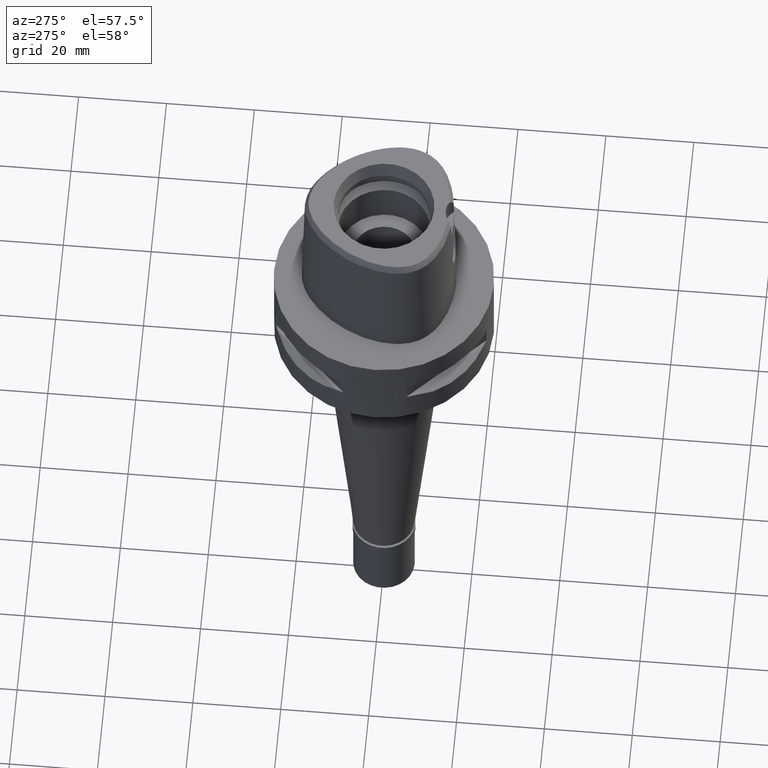
[diagram: clean part render]
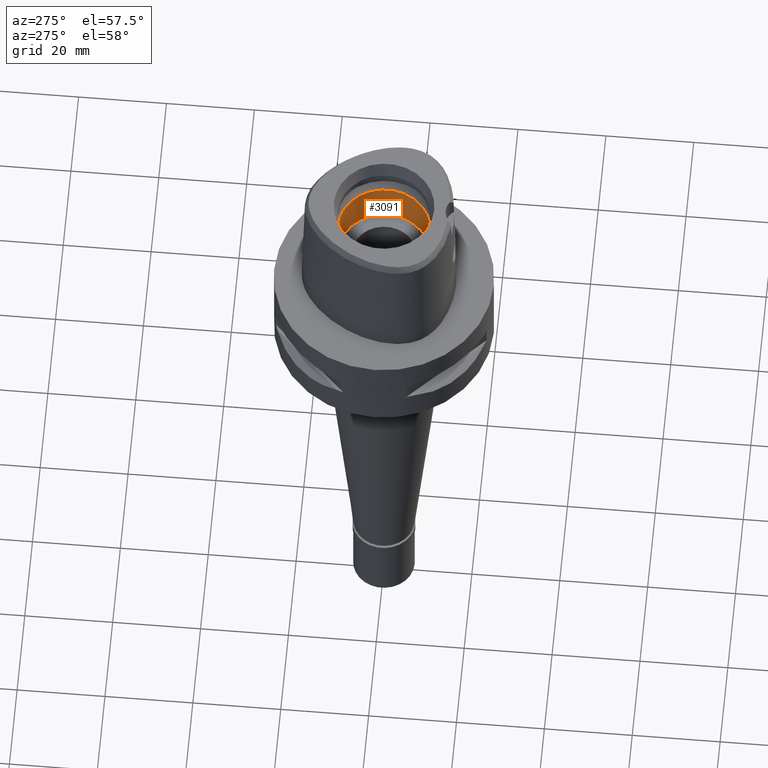
[diagram: same view with one face highlighted and labeled with its STEP entity id]
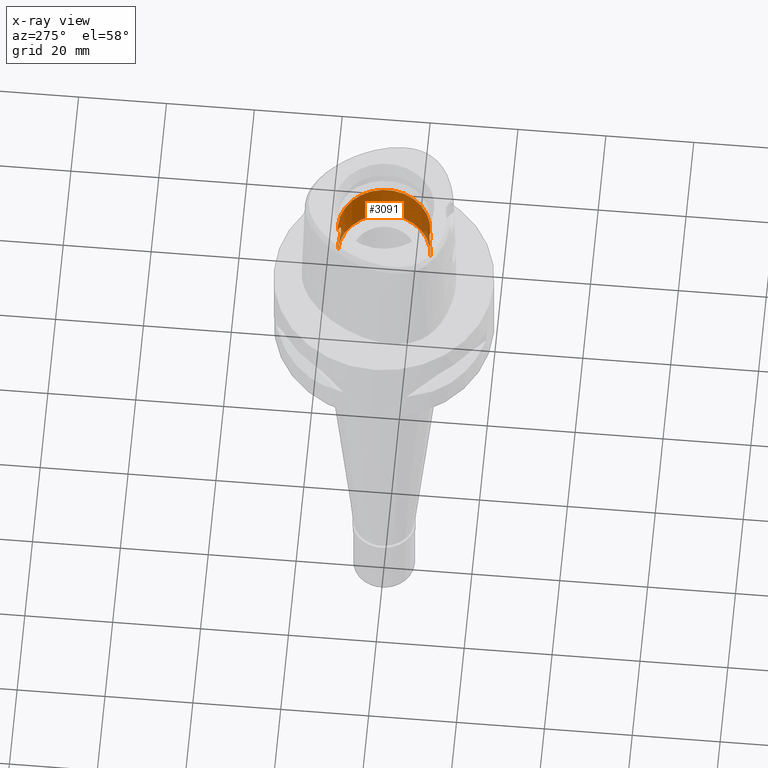
[diagram: x-ray of the same camera — body ghosted, the highlighted face saturated]
A machine part, auxiliary view. The second image highlights one B-rep face of the part: STEP entity #3091.
The next image is the same camera in x-ray: the body ghosted, the highlighted face saturated — about 4% of this face is hidden behind the body in this view.
In plain terms, the highlighted cylindrical surface (partial cylindrical patch) has radius 10.5 mm, axis along (0, 0, -1).
Its self-contained STEP definition (entity closure, byte-faithful):
#12 = CARTESIAN_POINT ( 'NONE',  ( 2.549768802787570010, 10.18570099338988832, 15.67367355964339026 ) ) ;
#27 = CARTESIAN_POINT ( 'NONE',  ( 0.6688774812611679721, -10.47883812602031561, 16.97738131204618384 ) ) ;
#34 = CARTESIAN_POINT ( 'NONE',  ( 1.342293398414086125, 10.41383903482682527, 16.73918355951393622 ) ) ;
#48 = CARTESIAN_POINT ( 'NONE',  ( 2.800979720946436213, -10.11960603068971132, 15.20712345414295541 ) ) ;
#72 = CARTESIAN_POINT ( 'NONE',  ( 2.552427928396863166, -10.18503463177848545, 12.33038235610675137 ) ) ;
#82 = CARTESIAN_POINT ( 'NONE',  ( 0.0000000000000000000, 1.483670516304999789E-14, 20.40089161527999906 ) ) ;
#93 = CARTESIAN_POINT ( 'NONE',  ( 2.136100343734112617, -10.28042929747009815, 16.17712836185316760 ) ) ;
#116 = CARTESIAN_POINT ( 'NONE',  ( 2.658794028149571442, -10.15786896108676451, 12.50467189553370240 ) ) ;
#142 = CARTESIAN_POINT ( 'NONE',  ( 2.422046306151929951, -10.21701399604496885, 15.85438239164646923 ) ) ;
#156 = AXIS2_PLACEMENT_3D ( 'NONE', #2419, #3881, #558 ) ;
#165 = FACE_OUTER_BOUND ( 'NONE', #3454, .T. ) ;
#173 = CARTESIAN_POINT ( 'NONE',  ( 1.386948097363750909, -10.40799934146660455, 11.28311535730615667 ) ) ;
#185 = CARTESIAN_POINT ( 'NONE',  ( 1.811923068219099653, 10.34268283243203790, 11.54447952458163051 ) ) ;
#213 = CARTESIAN_POINT ( 'NONE',  ( 2.136201039484774800, 10.28040836939871383, 11.82297045442675554 ) ) ;
#236 = CARTESIAN_POINT ( 'NONE',  ( 0.0000000000000000000, 10.50000000000000000, 20.40089161527999906 ) ) ;
#243 = CARTESIAN_POINT ( 'NONE',  ( 2.103306347304765289, 10.28717493434397845, 11.79118843241994341 ) ) ;
#248 = DIRECTION ( 'NONE',  ( 0.0000000000000000000, 0.0000000000000000000, -1.000000000000000000 ) ) ;
#250 = DIRECTION ( 'NONE',  ( 0.0000000000000000000, 0.0000000000000000000, -1.000000000000000000 ) ) ;
#315 = CARTESIAN_POINT ( 'NONE',  ( 0.3776824852804930854, 10.50000000000000355, 17.05000000000000071 ) ) ;
#340 = CARTESIAN_POINT ( 'NONE',  ( 2.556057301364237144, 10.18412497569450004, 15.66405603269874547 ) ) ;
#361 = CARTESIAN_POINT ( 'NONE',  ( 3.050000168970783410, 10.04725645812263579, 14.18510065153600053 ) ) ;
#377 = CARTESIAN_POINT ( 'NONE',  ( 1.500968808066890148, -10.39222569595904844, 16.65561435862955619 ) ) ;
#383 = CARTESIAN_POINT ( 'NONE',  ( 2.801053816413660247, 10.11958639361671786, 12.79304847579369309 ) ) ;
#406 = CARTESIAN_POINT ( 'NONE',  ( 2.465945275125391856, 10.20663448907766835, 15.79766872939286593 ) ) ;
#418 = CARTESIAN_POINT ( 'NONE',  ( 1.811842809112848895, -10.34269679768338257, 16.45557948583557462 ) ) ;
#439 = CARTESIAN_POINT ( 'NONE',  ( 2.888899562011218780, -10.09491797827999449, 13.01950824191362699 ) ) ;
#465 = CARTESIAN_POINT ( 'NONE',  ( 2.466005327969370775, -10.20661944846525593, 12.20241368106630375 ) ) ;
#486 = CARTESIAN_POINT ( 'NONE',  ( 2.484594037386860244, -10.20184754279077666, 15.76909523304286687 ) ) ;
#509 = CARTESIAN_POINT ( 'NONE',  ( 2.574354970550871258, -10.17952184411067584, 12.36430098328962046 ) ) ;
#534 = VERTEX_POINT ( 'NONE', #1340 ) ;
#540 = CARTESIAN_POINT ( 'NONE',  ( 0.7784719832900152126, -10.47826499193357641, 11.02113842329111115 ) ) ;
#554 = CARTESIAN_POINT ( 'NONE',  ( 1.641185955448284162, 10.37094866851886721, 11.42913987663042796 ) ) ;
#558 = DIRECTION ( 'NONE',  ( 0.0000000000000000000, -1.000000000000000000, 0.0000000000000000000 ) ) ;
#577 = CARTESIAN_POINT ( 'NONE',  ( 1.141794485349677313, 10.43767506429851011, 11.17176097919053213 ) ) ;
#601 = CARTESIAN_POINT ( 'NONE',  ( 0.3787274524813821763, 10.49470894530655407, 10.96720324273529279 ) ) ;
#625 = VERTEX_POINT ( 'NONE', #4708 ) ;
#632 = CARTESIAN_POINT ( 'NONE',  ( 2.525703912823202391, 10.19168522689460943, 12.29022032174983003 ) ) ;
#644 = ORIENTED_EDGE ( 'NONE', *, *, #1164, .T. ) ;
#655 = CARTESIAN_POINT ( 'NONE',  ( 1.601831701818940967, 10.37712803855642463, 11.40426016688685351 ) ) ;
#681 = CARTESIAN_POINT ( 'NONE',  ( 0.7784327284102964262, 10.47826738559791693, 16.97886791811174234 ) ) ;
#704 = CARTESIAN_POINT ( 'NONE',  ( 2.658740901824827141, 10.15788282424896138, 15.49542257602510986 ) ) ;
#721 = CARTESIAN_POINT ( 'NONE',  ( 1.141732985535315326, -10.43768196579646279, 16.82826384510322626 ) ) ;
#727 = CARTESIAN_POINT ( 'NONE',  ( 2.599143935894969726, 10.17324269225338718, 15.59630357580038051 ) ) ;
#739 = CARTESIAN_POINT ( 'NONE',  ( 1.456436929924989965, -10.39854506465477968, 16.68025671205563398 ) ) ;
#744 = CARTESIAN_POINT ( 'NONE',  ( 2.648850664410045130, 10.16055922834963710, 12.48463899832692192 ) ) ;
#761 = CARTESIAN_POINT ( 'NONE',  ( 1.657978121026951523, -10.36826822009252247, 16.56001047764421941 ) ) ;
#768 = CARTESIAN_POINT ( 'NONE',  ( 2.512921878283643995, 10.19492176240920145, 15.72972677548092157 ) ) ;
#785 = CARTESIAN_POINT ( 'NONE',  ( 3.027607236360491338, -10.05429310237827423, 14.38135529722916139 ) ) ;
#799 = ORIENTED_EDGE ( 'NONE', *, *, #3696, .F. ) ;
#804 = CARTESIAN_POINT ( 'NONE',  ( 2.531016047136658731, -10.19036528538620878, 15.70189936972407274 ) ) ;
#830 = CARTESIAN_POINT ( 'NONE',  ( 2.342968627457624908, -10.23558722573572766, 12.04475145765551147 ) ) ;
#859 = CARTESIAN_POINT ( 'NONE',  ( 2.103211535601106963, -10.28719430385092437, 16.20890183210499913 ) ) ;
#873 = EDGE_CURVE ( 'NONE', #2217, #3688, #2713, .T. ) ;
#882 = CARTESIAN_POINT ( 'NONE',  ( 1.930388096063102799, -10.32098858174314415, 16.36191406334469889 ) ) ;
#905 = CARTESIAN_POINT ( 'NONE',  ( 1.781763810728749897, -10.34769672004815533, 11.52446512619911090 ) ) ;
#922 = CARTESIAN_POINT ( 'NONE',  ( 0.9113412802436261506, 10.46031708979915820, 11.08889911175401188 ) ) ;
#958 = CARTESIAN_POINT ( 'NONE',  ( 1.971998943791629877, 10.31315283189274190, 11.67255075534903064 ) ) ;
#971 = CARTESIAN_POINT ( 'NONE',  ( 1.210594587562798585, -10.42986900100492065, 11.20051790911941758 ) ) ;
#979 = DIRECTION ( 'NONE',  ( 0.0000000000000000000, 0.0000000000000000000, -1.000000000000000000 ) ) ;
#1007 = CARTESIAN_POINT ( 'NONE',  ( 2.501007571785318184, 10.19780901880324642, 12.25415054793910130 ) ) ;
#1062 = CARTESIAN_POINT ( 'NONE',  ( 1.210530326312074134, 10.42987676989072732, 16.79950987504991033 ) ) ;
#1078 = CARTESIAN_POINT ( 'NONE',  ( 0.0000000000000000000, 1.610410540878999754E-14, 10.00000000000000000 ) ) ;
#1084 = CARTESIAN_POINT ( 'NONE',  ( 3.033106798430447615, 10.05272106261936926, 14.37597179215571508 ) ) ;
#1102 = CARTESIAN_POINT ( 'NONE',  ( 1.068247455599155682, -10.44548337543123928, 16.85701016503113792 ) ) ;
#1112 = CARTESIAN_POINT ( 'NONE',  ( 2.619440559707270744, 10.16803796971161056, 15.56259531553788023 ) ) ;
#1118 = CARTESIAN_POINT ( 'NONE',  ( 0.0000000000000000000, 10.50000000000000000, 20.40089161527999906 ) ) ;
#1131 = CARTESIAN_POINT ( 'NONE',  ( 2.741748741093550379, 10.13583772775570324, 12.66297536229606280 ) ) ;
#1145 = CARTESIAN_POINT ( 'NONE',  ( 1.568097863131003189, -10.38225193758933784, 16.61615038516162102 ) ) ;
#1146 = DIRECTION ( 'NONE',  ( 0.0000000000000000000, 1.000000000000000000, 0.0000000000000000000 ) ) ;
#1151 = CARTESIAN_POINT ( 'NONE',  ( 2.751833750798593492, 10.13317589947681796, 15.31899371389366848 ) ) ;
#1164 = EDGE_CURVE ( 'NONE', #3254, #534, #1823, .T. ) ;
#1171 = CARTESIAN_POINT ( 'NONE',  ( 2.772319110776069184, -10.12750285136528561, 15.27174168419082534 ) ) ;
#1194 = CARTESIAN_POINT ( 'NONE',  ( 2.787064406588477983, -10.12345627881758148, 15.23924730534490024 ) ) ;
#1213 = CARTESIAN_POINT ( 'NONE',  ( 2.791214425727966741, -10.12233497789926773, 12.76723173827698155 ) ) ;
#1240 = CARTESIAN_POINT ( 'NONE',  ( 1.989381541700123712, -10.31000550252612946, 11.68587608860982208 ) ) ;
#1247 = CARTESIAN_POINT ( 'NONE',  ( 0.0000000000000000000, -10.50000000000000000, 10.00000000000000000 ) ) ;
#1266 = CARTESIAN_POINT ( 'NONE',  ( 2.741672579531738485, -10.13585776235383484, 15.33718066085879173 ) ) ;
#1288 = CARTESIAN_POINT ( 'NONE',  ( 1.179453071966998223, -10.43343653779657565, 11.18724984501825048 ) ) ;
#1307 = CARTESIAN_POINT ( 'NONE',  ( 1.188897683297293284, -10.43236352860217053, 11.19123487431793151 ) ) ;
#1316 = CARTESIAN_POINT ( 'NONE',  ( 0.0000000000000000000, -10.50000000000000000, 17.05000000000000071 ) ) ;
#1332 = CARTESIAN_POINT ( 'NONE',  ( 1.342365910254549100, -10.41382946864366232, 11.26085191158715482 ) ) ;
#1340 = CARTESIAN_POINT ( 'NONE',  ( 0.0000000000000000000, 10.50000000000000000, 10.00000000000000000 ) ) ;
#1370 = CARTESIAN_POINT ( 'NONE',  ( 0.9839371454462720878, 10.45386861689152624, 11.11227514083250867 ) ) ;
#1394 = CARTESIAN_POINT ( 'NONE',  ( 1.501050544116798946, 10.39221389090072911, 11.34443176979017487 ) ) ;
#1441 = CARTESIAN_POINT ( 'NONE',  ( 2.810150186842709896, 10.11706320198503128, 12.81438185252698680 ) ) ;
#1455 = CARTESIAN_POINT ( 'NONE',  ( 0.9838845370238309407, -10.45387372780990809, 16.88774268329863304 ) ) ;
#1463 = CARTESIAN_POINT ( 'NONE',  ( 2.574295021999103206, 10.17953738072038128, 15.63579337298669536 ) ) ;
#1476 = CARTESIAN_POINT ( 'NONE',  ( 1.323896765677277765, -10.41651376008978325, 16.74949734448019356 ) ) ;
#1485 = CARTESIAN_POINT ( 'NONE',  ( 1.729811899855771884, 10.35653978206846304, 16.51205017565036215 ) ) ;
#1507 = CARTESIAN_POINT ( 'NONE',  ( 2.342902607903007972, 10.23560269219891516, 15.95532767853151768 ) ) ;
#1528 = CARTESIAN_POINT ( 'NONE',  ( 1.276100751046590487, 10.42207867787087139, 16.77031792547582612 ) ) ;
#1549 = CARTESIAN_POINT ( 'NONE',  ( 2.719700136812867708, -10.14177672420369447, 15.38140804886839419 ) ) ;
#1572 = CARTESIAN_POINT ( 'NONE',  ( 2.549831744840582726, -10.18568479865094112, 12.32642233344095573 ) ) ;
#1589 = CARTESIAN_POINT ( 'NONE',  ( 2.844275244107489442, -10.10750057597628526, 12.89874350943842174 ) ) ;
#1616 = CARTESIAN_POINT ( 'NONE',  ( 1.833449799978573935, -10.33866271675340975, 11.56221769112445052 ) ) ;
#1666 = CARTESIAN_POINT ( 'NONE',  ( 1.716860572636586868, -10.35869652779481065, 11.47910248954204704 ) ) ;
#1677 = CARTESIAN_POINT ( 'NONE',  ( 1.237025000621027937, 10.42716557871980498, 11.21062230837929263 ) ) ;
#1705 = CARTESIAN_POINT ( 'NONE',  ( 0.0000000000000000000, -10.50000000000000000, 20.40089161527999906 ) ) ;
#1733 = DIRECTION ( 'NONE',  ( 0.0000000000000000000, 0.0000000000000000000, -1.000000000000000000 ) ) ;
#1739 = CARTESIAN_POINT ( 'NONE',  ( 1.104370182683264812, 10.44169505746011595, 11.15693245560120950 ) ) ;
#1793 = B_SPLINE_CURVE_WITH_KNOTS ( 'NONE', 3,
 ( #4667, #3242, #601, #2798, #4687, #922, #1370, #2414, #1739, #4610, #577, #1677, #3877, #4284, #1394, #2871, #655, #554, #2466, #2051, #4304, #3518, #185, #3159, #958, #3904, #3927, #243, #2075, #213, #3194, #2101, #3571, #3221, #2848, #1007, #3950, #632, #4374, #2920, #2537, #2241, #744, #1857, #1131, #4738, #4783, #383, #1441, #2970, #3682, #4084, #3358, #1881, #361, #1084, #4398, #2586, #3664, #4045, #3293, #3313, #2560, #4023, #2946, #1151, #3704, #704, #1112, #727, #1463, #2629, #340, #2197, #12, #768, #406, #1507, #4760, #3726, #2988, #2218, #1836, #3337, #2610, #1485, #4420, #3643, #2265, #4062, #4442, #1900, #3373, #34, #1528, #4354, #1062, #3999, #2173, #681, #315, #1816 ),
 .UNSPECIFIED., .F., .F.,
 ( 4, 2, 2, 1, 1, 2, 2, 2, 2, 1, 1, 2, 2, 2, 2, 1, 2, 2, 2, 2, 1, 1, 1, 2, 2, 2, 2, 1, 2, 2, 2, 2, 2, 2, 1, 1, 2, 2, 2, 2, 1, 1, 1, 2, 2, 2, 2, 2, 2, 1, 1, 1, 2, 2, 2, 2, 1, 2, 2, 4 ),
 ( 0.0000000000000000000, 0.06250000000001879052, 0.09375000000002815803, 0.1093750000000328210, 0.1171875000000351247, 0.1210937500000363876, 0.1250000000000376643, 0.1562500000000484335, 0.1718750000000537903, 0.1796875000000564548, 0.1835937500000577594, 0.1855468750000582590, 0.1875000000000587586, 0.2187500000000685285, 0.2343750000000733302, 0.2421875000000758282, 0.2460937500000770772, 0.2500000000000782707, 0.2812500000000884848, 0.2968750000000937583, 0.3046875000000962563, 0.3085937500000974776, 0.3105468750000977551, 0.3115234375000978662, 0.3125000000000980327, 0.3437500000000984768, 0.3593750000000989209, 0.3671875000000989764, 0.3710937500000989209, 0.3750000000000988654, 0.4375000000001045275, 0.5000000000001102451, 0.5625000000001159073, 0.5937500000001185718, 0.6093750000001201261, 0.6171875000001209033, 0.6210937500001211253, 0.6250000000001212364, 0.6562500000001231237, 0.6718750000001240119, 0.6796875000001247891, 0.6835937500001252332, 0.6855468750001258993, 0.6865234375001257883, 0.6875000000001256772, 0.7187500000001195710, 0.7500000000001135758, 0.7812500000001075806, 0.7968750000001044720, 0.8046875000001033618, 0.8085937500001029177, 0.8105468750001025846, 0.8115234375001021405, 0.8125000000001015854, 0.8437500000000834888, 0.8593750000000743849, 0.8671875000000698330, 0.8710937500000678346, 0.8750000000000657252, 1.000000000000000000 ),
 .UNSPECIFIED. ) ;
#1816 = CARTESIAN_POINT ( 'NONE',  ( 0.0000000000000000000, 10.50000000000000000, 17.05000000000000071 ) ) ;
#1823 = LINE ( 'NONE', #3959, #3483 ) ;
#1836 = CARTESIAN_POINT ( 'NONE',  ( 1.833369269573338123, 10.33867676254427437, 16.43784289496951700 ) ) ;
#1857 = CARTESIAN_POINT ( 'NONE',  ( 2.719777489731567410, 10.14175641246916015, 12.61874419158370664 ) ) ;
#1881 = CARTESIAN_POINT ( 'NONE',  ( 3.049999831026676933, 10.04726935032736890, 13.81489378006643243 ) ) ;
#1900 = CARTESIAN_POINT ( 'NONE',  ( 1.521598319329239724, 10.38951171458037770, 16.64529504379291680 ) ) ;
#1915 = CARTESIAN_POINT ( 'NONE',  ( 2.648768239977827399, -10.16058067332577330, 15.51550484575867550 ) ) ;
#1939 = CARTESIAN_POINT ( 'NONE',  ( 2.561634872386847395, -10.18272450818466446, 12.34452234617988609 ) ) ;
#1966 = CARTESIAN_POINT ( 'NONE',  ( 2.266144854621401361, -10.25299388352025787, 11.95426803284425610 ) ) ;
#1986 = CARTESIAN_POINT ( 'NONE',  ( 2.912211511062697156, -10.08825325305797627, 13.09221294453771911 ) ) ;
#2010 = CARTESIAN_POINT ( 'NONE',  ( 1.740926287971506836, -10.35483511188262185, 16.50537809591427063 ) ) ;
#2039 = CARTESIAN_POINT ( 'NONE',  ( 1.276169219736535076, -10.42207001621971330, 11.22971359884679643 ) ) ;
#2051 = CARTESIAN_POINT ( 'NONE',  ( 1.669325064467333863, 10.36644722215274506, 11.44737411065894861 ) ) ;
#2075 = CARTESIAN_POINT ( 'NONE',  ( 2.125917809817211790, 10.28253520498369511, 11.81294270820584735 ) ) ;
#2101 = CARTESIAN_POINT ( 'NONE',  ( 2.328196717487270195, 10.23898725311201119, 12.02714150817950589 ) ) ;
#2107 = VERTEX_POINT ( 'NONE', #1247 ) ;
#2155 = CARTESIAN_POINT ( 'NONE',  ( 0.0000000000000000000, -10.50000000000000000, 10.94999999999999929 ) ) ;
#2166 = CARTESIAN_POINT ( 'NONE',  ( 1.676718924548066481, -10.36525237659834708, 16.54777042361276784 ) ) ;
#2173 = CARTESIAN_POINT ( 'NONE',  ( 1.179391020530852652, 10.43344386839362059, 16.81277616976975153 ) ) ;
#2197 = CARTESIAN_POINT ( 'NONE',  ( 2.552365511454779412, 10.18505070644791388, 15.66971306030548483 ) ) ;
#2213 = CARTESIAN_POINT ( 'NONE',  ( 1.236957856289733648, -10.42717367617683877, 16.78940726311529374 ) ) ;
#2217 = VERTEX_POINT ( 'NONE', #1316 ) ;
#2218 = CARTESIAN_POINT ( 'NONE',  ( 1.870575969054834475, 10.33200182690538682, 16.40956895859907760 ) ) ;
#2223 = DIRECTION ( 'NONE',  ( 0.0000000000000000000, -1.000000000000000000, 0.0000000000000000000 ) ) ;
#2241 = CARTESIAN_POINT ( 'NONE',  ( 2.594875644332431008, 10.17449012125675267, 12.39333396167546297 ) ) ;
#2255 = CARTESIAN_POINT ( 'NONE',  ( 1.669234959747533331, -10.36646163797745679, 16.55268481105852629 ) ) ;
#2265 = CARTESIAN_POINT ( 'NONE',  ( 1.707656667431065589, 10.36021860589374732, 16.52713543650936856 ) ) ;
#2280 = CARTESIAN_POINT ( 'NONE',  ( 3.049997457825905034, -10.04726768335126152, 14.09262106841230988 ) ) ;
#2301 = CARTESIAN_POINT ( 'NONE',  ( 2.619496371660233969, -10.16802340642455604, 12.43749825123569508 ) ) ;
#2308 = EDGE_CURVE ( 'NONE', #3966, #2217, #3542, .T. ) ;
#2325 = CARTESIAN_POINT ( 'NONE',  ( 2.954919872153779714, -10.07594969640612881, 13.23766054668898917 ) ) ;
#2354 = CARTESIAN_POINT ( 'NONE',  ( 2.531198843314137026, -10.19031986401626710, 15.70162992011681347 ) ) ;
#2376 = CARTESIAN_POINT ( 'NONE',  ( 2.829361163358425024, -10.11167872823986613, 12.86099082516203751 ) ) ;
#2398 = CARTESIAN_POINT ( 'NONE',  ( 1.707003811296404328, -10.36032678721340439, 11.47242214210652378 ) ) ;
#2414 = CARTESIAN_POINT ( 'NONE',  ( 1.068304840380863485, 10.44547733483863894, 11.14301126591829316 ) ) ;
#2419 = CARTESIAN_POINT ( 'NONE',  ( 0.0000000000000000000, 1.610410540878999754E-14, 31.50000000000000000 ) ) ;
#2466 = CARTESIAN_POINT ( 'NONE',  ( 1.658067691841937918, 10.36825398497860462, 11.44004753343680214 ) ) ;
#2537 = CARTESIAN_POINT ( 'NONE',  ( 2.531295471044666012, 10.19029565195985398, 12.29851382421077943 ) ) ;
#2542 = LINE ( 'NONE', #2155, #4171 ) ;
#2560 = CARTESIAN_POINT ( 'NONE',  ( 2.834772115109752910, 10.11016348655465080, 15.12549303329494776 ) ) ;
#2578 = CARTESIAN_POINT ( 'NONE',  ( 1.104310761165587129, -10.44170151709308136, 16.84309062177460348 ) ) ;
#2586 = CARTESIAN_POINT ( 'NONE',  ( 2.954882638284636709, 10.07596013546080904, 14.76248388676967416 ) ) ;
#2610 = CARTESIAN_POINT ( 'NONE',  ( 1.756864159878566367, 10.35198327953328956, 16.49330503809262538 ) ) ;
#2622 = CARTESIAN_POINT ( 'NONE',  ( 1.601744847466686217, -10.37714138207295811, 16.59579339570974810 ) ) ;
#2629 = CARTESIAN_POINT ( 'NONE',  ( 2.561573521328561753, 10.18274035299596036, 15.65557258541091734 ) ) ;
#2644 = CARTESIAN_POINT ( 'NONE',  ( 3.013860203605535748, -10.05850444702513258, 14.47860310561554975 ) ) ;
#2659 = CARTESIAN_POINT ( 'NONE',  ( 2.683269133176498844, -10.15143825073914741, 12.54912944303389821 ) ) ;
#2678 = CARTESIAN_POINT ( 'NONE',  ( 2.594787844664584675, -10.17451272417047825, 15.60680824590878757 ) ) ;
#2706 = CARTESIAN_POINT ( 'NONE',  ( 1.870655397227993788, -10.33198768520815669, 11.59049268858693438 ) ) ;
#2713 = B_SPLINE_CURVE_WITH_KNOTS ( 'NONE', 3,
 ( #4415, #3351, #3637, #27, #4057, #4777, #1455, #1102, #2578, #4039, #721, #2213, #1476, #739, #377, #1145, #2622, #4077, #761, #2255, #2166, #2010, #418, #882, #3095, #4117, #3003, #859, #3479, #93, #4501, #4458, #142, #3067, #486, #4521, #3386, #4166, #4548, #804, #2354, #2678, #1915, #1549, #1266, #1171, #1194, #48, #4099, #2737, #3044, #3816, #2644, #785, #4193, #2280, #3024, #4484, #3739, #2325, #1986, #439, #3789, #1589, #3455, #2376, #1213, #3835, #2659, #116, #2301, #3761, #509, #1939, #3407, #72, #1572, #4139, #465, #830, #1966, #3431, #1240, #2706, #1616, #905, #3123, #3863, #1666, #4623, #3534, #2398, #3146, #4595, #173, #1332, #2039, #2811, #971, #1307, #1288, #540, #2783, #4239 ),
 .UNSPECIFIED., .F., .F.,
 ( 4, 2, 2, 1, 1, 2, 2, 2, 2, 1, 1, 2, 2, 2, 2, 1, 2, 2, 2, 2, 1, 1, 1, 2, 2, 2, 2, 1, 2, 2, 2, 2, 2, 2, 2, 1, 1, 2, 2, 2, 2, 1, 1, 1, 2, 2, 2, 2, 2, 2, 1, 1, 1, 2, 2, 2, 2, 1, 2, 2, 4 ),
 ( 0.0000000000000000000, 0.06249999999992951472, 0.09374999999989434840, 0.1093749999998765987, 0.1171874999998677308, 0.1210937499998632622, 0.1249999999998588074, 0.1562499999998203382, 0.1718749999998008260, 0.1796874999997910560, 0.1835937499997860878, 0.1855468749997836175, 0.1874999999997811473, 0.2187499999997441213, 0.2343749999997252753, 0.2421874999997158384, 0.2460937499997114253, 0.2499999999997069844, 0.2812499999996705968, 0.2968749999996523337, 0.3046874999996431743, 0.3085937499996391775, 0.3105468749996372901, 0.3115234374996369571, 0.3124999999996366240, 0.3437499999996477262, 0.3593749999996534994, 0.3671874999996566080, 0.3710937499996579403, 0.3749999999996592170, 0.4374999999996792566, 0.4687499999996892486, 0.4999999999996992406, 0.5624999999997192246, 0.5937499999997293276, 0.6093749999997343236, 0.6171874999997368771, 0.6210937499997380984, 0.6249999999997393196, 0.6562499999997486455, 0.6718749999997531974, 0.6796874999997555289, 0.6835937499997566391, 0.6855468749997573052, 0.6865234374997576383, 0.6874999999997579714, 0.7187499999997785105, 0.7499999999997989386, 0.7812499999998194777, 0.7968749999998296918, 0.8046874999998347988, 0.8085937499998374633, 0.8105468749998386846, 0.8115234374998394618, 0.8124999999998401279, 0.8437499999998666622, 0.8593749999998798739, 0.8671874999998865352, 0.8710937499998897549, 0.8749999999998930855, 1.000000000000000000 ),
 .UNSPECIFIED. ) ;
#2737 = CARTESIAN_POINT ( 'NONE',  ( 2.813871346667223605, -10.11602783675715500, 15.17677601548344590 ) ) ;
#2757 = EDGE_CURVE ( 'NONE', #3688, #2107, #2542, .T. ) ;
#2764 = VERTEX_POINT ( 'NONE', #1118 ) ;
#2772 = CYLINDRICAL_SURFACE ( 'NONE', #156, 10.50000000000000000 ) ;
#2783 = CARTESIAN_POINT ( 'NONE',  ( 0.3776990394879757851, -10.49999999999999822, 10.94999999999999751 ) ) ;
#2798 = CARTESIAN_POINT ( 'NONE',  ( 0.6689123132078689249, 10.47883578122621451, 11.02262632832667499 ) ) ;
#2811 = CARTESIAN_POINT ( 'NONE',  ( 1.243239666746700278, -10.42606412921035286, 11.21470856859099108 ) ) ;
#2848 = CARTESIAN_POINT ( 'NONE',  ( 2.484679344343491358, 10.20182652914216170, 12.23102453892253116 ) ) ;
#2868 = ORIENTED_EDGE ( 'NONE', *, *, #4260, .T. ) ;
#2871 = CARTESIAN_POINT ( 'NONE',  ( 1.568183029890100944, 10.38223911306336333, 11.38390064693865789 ) ) ;
#2920 = CARTESIAN_POINT ( 'NONE',  ( 2.531111734320958817, 10.19034130873208532, 12.29824294131188545 ) ) ;
#2946 = CARTESIAN_POINT ( 'NONE',  ( 2.791161911908845550, 10.12234823481605162, 15.23288588802282817 ) ) ;
#2970 = CARTESIAN_POINT ( 'NONE',  ( 2.813945975878913153, 10.11600799454591559, 12.82340245404689050 ) ) ;
#2988 = CARTESIAN_POINT ( 'NONE',  ( 1.989303514585730737, 10.31002034776191856, 16.31419092035543272 ) ) ;
#2991 = EDGE_CURVE ( 'NONE', #3966, #2764, #3655, .T. ) ;
#2993 = DIRECTION ( 'NONE',  ( 0.0000000000000000000, 0.0000000000000000000, 1.000000000000000000 ) ) ;
#3003 = CARTESIAN_POINT ( 'NONE',  ( 2.069523711590793624, -10.29404353534653893, 16.24080587214390192 ) ) ;
#3024 = CARTESIAN_POINT ( 'NONE',  ( 3.050005080898542165, -10.04725334564248307, 13.81500911718046076 ) ) ;
#3044 = CARTESIAN_POINT ( 'NONE',  ( 2.899433381332750859, -10.09218068781909317, 14.96967267542248159 ) ) ;
#3067 = CARTESIAN_POINT ( 'NONE',  ( 2.449231481420490297, -10.21047344920699906, 15.81807234377296112 ) ) ;
#3091 = ADVANCED_FACE ( 'NONE', ( #165 ), #2772, .F. ) ;
#3095 = CARTESIAN_POINT ( 'NONE',  ( 1.971913834745691041, -10.31316905232283787, 16.32752121028857673 ) ) ;
#3100 = CARTESIAN_POINT ( 'NONE',  ( 0.0000000000000000000, -10.50000000000000000, 20.40089161527999906 ) ) ;
#3123 = CARTESIAN_POINT ( 'NONE',  ( 1.756949084913084214, -10.35196908568974550, 11.50675482054573884 ) ) ;
#3146 = CARTESIAN_POINT ( 'NONE',  ( 1.612833193455769809, -10.37582084644413172, 11.40897843857475102 ) ) ;
#3159 = CARTESIAN_POINT ( 'NONE',  ( 1.930471181807694503, 10.32097309170120170, 11.63815379018958218 ) ) ;
#3194 = CARTESIAN_POINT ( 'NONE',  ( 2.249117324493820735, 10.25680736615528588, 11.93506107646698311 ) ) ;
#3221 = CARTESIAN_POINT ( 'NONE',  ( 2.449312465963388252, 10.21045377916495234, 12.18203659319498477 ) ) ;
#3242 = CARTESIAN_POINT ( 'NONE',  ( 0.1867762932004476961, 10.50000000000000711, 10.94999999999999929 ) ) ;
#3254 = VERTEX_POINT ( 'NONE', #4334 ) ;
#3293 = CARTESIAN_POINT ( 'NONE',  ( 2.858142235063099168, 10.10360451450099895, 15.06521770040404640 ) ) ;
#3313 = CARTESIAN_POINT ( 'NONE',  ( 2.844221904568916770, 10.10751425218350441, 15.10139423921211410 ) ) ;
#3337 = CARTESIAN_POINT ( 'NONE',  ( 1.781680532372264425, 10.34771082988919133, 16.47559481647503077 ) ) ;
#3351 = CARTESIAN_POINT ( 'NONE',  ( 0.1867674398480352604, -10.49999999999999467, 17.04999999999999005 ) ) ;
#3358 = CARTESIAN_POINT ( 'NONE',  ( 3.032693110682604498, 10.05288456797676133, 13.61931366745536032 ) ) ;
#3373 = CARTESIAN_POINT ( 'NONE',  ( 1.386873018863575613, 10.40800951963617571, 16.71692290248977386 ) ) ;
#3386 = CARTESIAN_POINT ( 'NONE',  ( 2.517739876222782058, -10.19366303897557202, 15.72151130424244414 ) ) ;
#3407 = CARTESIAN_POINT ( 'NONE',  ( 2.556119287377531357, -10.18410899365403388, 12.33603918460904758 ) ) ;
#3431 = CARTESIAN_POINT ( 'NONE',  ( 2.078135821199520006, -10.29274126334308193, 11.76353330178664436 ) ) ;
#3454 = EDGE_LOOP ( 'NONE', ( #644, #2868, #4112, #3663, #4766, #4486, #3517, #799 ) ) ;
#3455 = CARTESIAN_POINT ( 'NONE',  ( 2.834826346757756799, -10.11014960679703911, 12.87464356492052531 ) ) ;
#3479 = CARTESIAN_POINT ( 'NONE',  ( 2.125820991384376413, -10.28255521734048017, 16.18715138478157201 ) ) ;
#3483 = VECTOR ( 'NONE', #250, 1000.000000000000000 ) ;
#3517 = ORIENTED_EDGE ( 'NONE', *, *, #4147, .T. ) ;
#3518 = CARTESIAN_POINT ( 'NONE',  ( 1.741009038481570181, 10.35482127465988000, 11.49467963125762715 ) ) ;
#3534 = CARTESIAN_POINT ( 'NONE',  ( 1.707746356238994512, -10.36020401293069249, 11.47292517123250022 ) ) ;
#3542 = LINE ( 'NONE', #1705, #4333 ) ;
#3571 = CARTESIAN_POINT ( 'NONE',  ( 2.422125717785657883, 10.21699491830676543, 12.14572125793936053 ) ) ;
#3637 = CARTESIAN_POINT ( 'NONE',  ( 0.3787085517134362589, -10.49470953150507491, 17.03279839123862516 ) ) ;
#3639 = DIRECTION ( 'NONE',  ( 0.0000000000000000000, 0.0000000000000000000, -1.000000000000000000 ) ) ;
#3643 = CARTESIAN_POINT ( 'NONE',  ( 1.711288638924743255, 10.35961863196605925, 16.52467740564418719 ) ) ;
#3655 = CIRCLE ( 'NONE', #4102, 10.50000000000000000 ) ;
#3663 = ORIENTED_EDGE ( 'NONE', *, *, #873, .F. ) ;
#3664 = CARTESIAN_POINT ( 'NONE',  ( 2.912166724520529382, 10.08826516473200563, 14.90793074598242995 ) ) ;
#3682 = CARTESIAN_POINT ( 'NONE',  ( 2.899493436784370992, 10.09216444762106768, 13.03050769528759822 ) ) ;
#3688 = VERTEX_POINT ( 'NONE', #4328 ) ;
#3696 = EDGE_CURVE ( 'NONE', #3254, #625, #1793, .T. ) ;
#3704 = CARTESIAN_POINT ( 'NONE',  ( 2.683217005999413374, 10.15145179343504012, 15.45096686765993077 ) ) ;
#3726 = CARTESIAN_POINT ( 'NONE',  ( 2.078056133906709402, 10.29275713203050202, 16.23654017637923275 ) ) ;
#3739 = CARTESIAN_POINT ( 'NONE',  ( 2.978168158509828967, -10.06911518369448721, 13.33467206363919111 ) ) ;
#3761 = CARTESIAN_POINT ( 'NONE',  ( 2.599201387564405330, -10.17322772404753906, 12.40379000138812771 ) ) ;
#3789 = CARTESIAN_POINT ( 'NONE',  ( 2.858194183440916802, -10.10359114810717074, 12.93492166893522999 ) ) ;
#3816 = CARTESIAN_POINT ( 'NONE',  ( 2.957410717728170990, -10.07534498681893709, 14.77193191733126199 ) ) ;
#3835 = CARTESIAN_POINT ( 'NONE',  ( 2.751884679008838042, -10.13316287932903847, 12.68111214655986352 ) ) ;
#3863 = CARTESIAN_POINT ( 'NONE',  ( 1.729899245027333832, -10.35652539926146964, 11.48800997733543561 ) ) ;
#3877 = CARTESIAN_POINT ( 'NONE',  ( 1.323968914910981010, 10.41650450081951540, 11.25053714606462307 ) ) ;
#3881 = DIRECTION ( 'NONE',  ( 0.0000000000000000000, 0.0000000000000000000, -1.000000000000000000 ) ) ;
#3904 = CARTESIAN_POINT ( 'NONE',  ( 2.036679914412427017, 10.30054692283279216, 11.72948026183113690 ) ) ;
#3927 = CARTESIAN_POINT ( 'NONE',  ( 2.069615633376302277, 10.29402508846599318, 11.75927893723172524 ) ) ;
#3950 = CARTESIAN_POINT ( 'NONE',  ( 2.517831763548236790, 10.19364012408467701, 12.27862306712655460 ) ) ;
#3959 = CARTESIAN_POINT ( 'NONE',  ( 0.0000000000000000000, 10.50000000000000000, 10.94999999999999929 ) ) ;
#3966 = VERTEX_POINT ( 'NONE', #3100 ) ;
#3999 = CARTESIAN_POINT ( 'NONE',  ( 1.188834861596867132, 10.43237100270110673, 16.80879171233381797 ) ) ;
#4023 = CARTESIAN_POINT ( 'NONE',  ( 2.829305774438843457, 10.11169290979799484, 15.13914673285195533 ) ) ;
#4039 = CARTESIAN_POINT ( 'NONE',  ( 1.128329994157148075, -10.43913894641584861, 16.83364393760651723 ) ) ;
#4045 = CARTESIAN_POINT ( 'NONE',  ( 2.888851203370332854, 10.09493059036127605, 14.98063416284669813 ) ) ;
#4057 = CARTESIAN_POINT ( 'NONE',  ( 0.7659603749334191747, -10.47222504040166413, 16.95398183797882297 ) ) ;
#4062 = CARTESIAN_POINT ( 'NONE',  ( 1.706913597197094123, 10.36034146067490092, 16.52763878149520949 ) ) ;
#4075 = VECTOR ( 'NONE', #1733, 1000.000000000000000 ) ;
#4077 = CARTESIAN_POINT ( 'NONE',  ( 1.641097190152380758, -10.37096263372367666, 16.57091677865613732 ) ) ;
#4084 = CARTESIAN_POINT ( 'NONE',  ( 2.957454687630677093, 10.07533207755579063, 13.22824138619685641 ) ) ;
#4099 = CARTESIAN_POINT ( 'NONE',  ( 2.810076276443413068, -10.11708282625331634, 15.18579330039645470 ) ) ;
#4102 = AXIS2_PLACEMENT_3D ( 'NONE', #82, #2993, #2223 ) ;
#4112 = ORIENTED_EDGE ( 'NONE', *, *, #2757, .F. ) ;
#4117 = CARTESIAN_POINT ( 'NONE',  ( 2.036590477875869887, -10.30056457203203024, 16.27059992390260490 ) ) ;
#4139 = CARTESIAN_POINT ( 'NONE',  ( 2.512982091376483318, -10.19490641663851349, 12.27036038364443371 ) ) ;
#4147 = EDGE_CURVE ( 'NONE', #2764, #625, #4300, .T. ) ;
#4166 = CARTESIAN_POINT ( 'NONE',  ( 2.525609857181217333, -10.19170874939327298, 15.70991860409097818 ) ) ;
#4171 = VECTOR ( 'NONE', #248, 1000.000000000000000 ) ;
#4193 = CARTESIAN_POINT ( 'NONE',  ( 3.045675422398149923, -10.04867475032002666, 14.18894089495660360 ) ) ;
#4239 = CARTESIAN_POINT ( 'NONE',  ( 0.0000000000000000000, -10.50000000000000000, 10.94999999999999929 ) ) ;
#4260 = EDGE_CURVE ( 'NONE', #534, #2107, #4456, .T. ) ;
#4284 = CARTESIAN_POINT ( 'NONE',  ( 1.456516304988193289, 10.39853391455694798, 11.31978635711464598 ) ) ;
#4300 = LINE ( 'NONE', #236, #4075 ) ;
#4304 = CARTESIAN_POINT ( 'NONE',  ( 1.676810051163809989, 10.36523773137637860, 11.45228955112465208 ) ) ;
#4328 = CARTESIAN_POINT ( 'NONE',  ( 0.0000000000000000000, -10.50000000000000000, 10.94999999999999929 ) ) ;
#4333 = VECTOR ( 'NONE', #979, 1000.000000000000000 ) ;
#4334 = CARTESIAN_POINT ( 'NONE',  ( 0.0000000000000000000, 10.50000000000000000, 10.94999999999999929 ) ) ;
#4354 = CARTESIAN_POINT ( 'NONE',  ( 1.243173267947210059, 10.42607234195740240, 16.78532104135614844 ) ) ;
#4374 = CARTESIAN_POINT ( 'NONE',  ( 2.528963694661670480, 10.19087517456368985, 12.29505239684755402 ) ) ;
#4398 = CARTESIAN_POINT ( 'NONE',  ( 2.978136503178874683, 10.06912454526312040, 14.66547041874823698 ) ) ;
#4415 = CARTESIAN_POINT ( 'NONE',  ( 0.0000000000000000000, -10.50000000000000000, 17.05000000000000071 ) ) ;
#4420 = CARTESIAN_POINT ( 'NONE',  ( 1.716771890542658108, 10.35871102782363629, 16.52095790637934059 ) ) ;
#4442 = CARTESIAN_POINT ( 'NONE',  ( 1.612746601570586247, 10.37583416523136925, 16.59107516802520266 ) ) ;
#4456 = CIRCLE ( 'NONE', #4693, 10.50000000000000000 ) ;
#4458 = CARTESIAN_POINT ( 'NONE',  ( 2.328117555959193563, -10.23900546424033919, 15.97295162130381918 ) ) ;
#4484 = CARTESIAN_POINT ( 'NONE',  ( 3.033122084150415176, -10.05271522072828461, 13.62415721944560865 ) ) ;
#4486 = ORIENTED_EDGE ( 'NONE', *, *, #2991, .T. ) ;
#4501 = CARTESIAN_POINT ( 'NONE',  ( 2.249032427112489074, -10.25682621327920252, 16.06503230505761337 ) ) ;
#4521 = CARTESIAN_POINT ( 'NONE',  ( 2.500919610565563556, -10.19783081804284031, 15.74597536509110185 ) ) ;
#4548 = CARTESIAN_POINT ( 'NONE',  ( 2.528868665928027504, -10.19089896813328266, 15.70508855078493760 ) ) ;
#4595 = CARTESIAN_POINT ( 'NONE',  ( 1.521680657581645058, -10.38949967355637405, 11.35475204899650414 ) ) ;
#4610 = CARTESIAN_POINT ( 'NONE',  ( 1.128390770668342924, 10.43913220284298227, 11.16638025997063011 ) ) ;
#4623 = CARTESIAN_POINT ( 'NONE',  ( 1.711377921381092904, -10.35960407682640927, 11.47538311467915051 ) ) ;
#4667 = CARTESIAN_POINT ( 'NONE',  ( 0.0000000000000000000, 10.50000000000000000, 10.94999999999999929 ) ) ;
#4687 = CARTESIAN_POINT ( 'NONE',  ( 0.7660006551190400303, 10.47222196285940932, 11.04602839572754647 ) ) ;
#4693 = AXIS2_PLACEMENT_3D ( 'NONE', #1078, #3639, #1146 ) ;
#4708 = CARTESIAN_POINT ( 'NONE',  ( 0.0000000000000000000, 10.50000000000000000, 17.05000000000000071 ) ) ;
#4738 = CARTESIAN_POINT ( 'NONE',  ( 2.772394022729005147, 10.12748308155556742, 12.72842159383884386 ) ) ;
#4760 = CARTESIAN_POINT ( 'NONE',  ( 2.266059277933627047, 10.25301290796280718, 16.04582614244629823 ) ) ;
#4766 = ORIENTED_EDGE ( 'NONE', *, *, #2308, .F. ) ;
#4777 = CARTESIAN_POINT ( 'NONE',  ( 0.9112927875690969293, -10.46032148628809821, 16.91111601522402452 ) ) ;
#4783 = CARTESIAN_POINT ( 'NONE',  ( 2.787138828272393454, 10.12343660367300480, 12.76091999483743678 ) ) ;